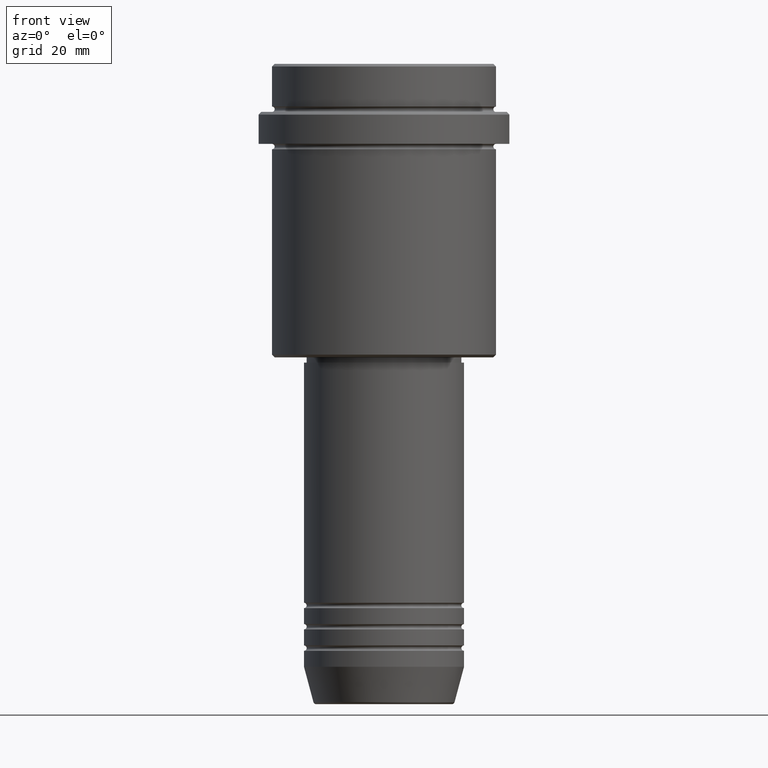
[diagram: clean part render]
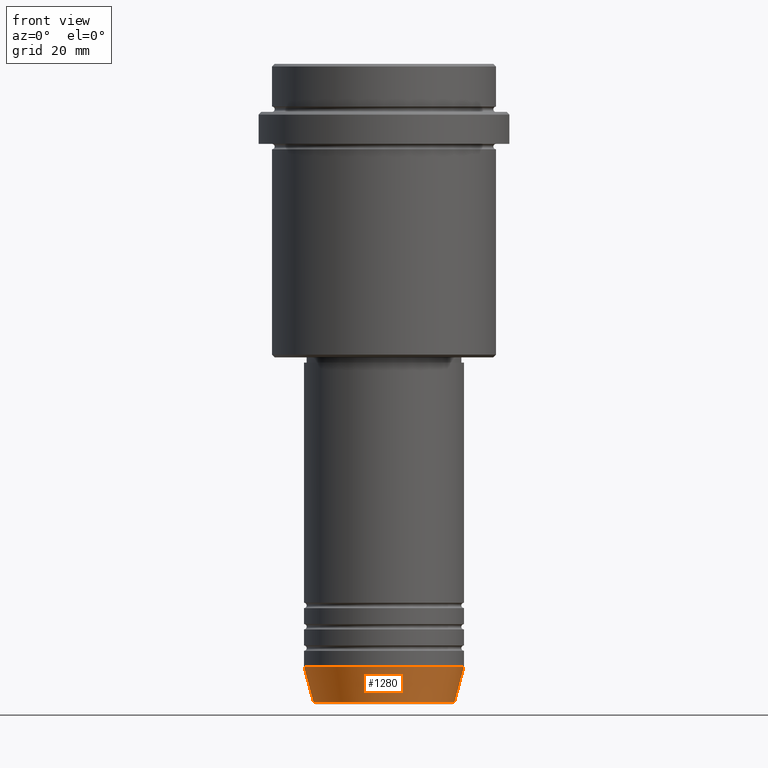
[diagram: same view with one face highlighted and labeled with its STEP entity id]
A machine part, front view. The second image highlights one B-rep face of the part: STEP entity #1280.
In plain terms, the highlighted conical surface has half-angle 15 deg.
Its self-contained STEP definition (entity closure, byte-faithful):
#19 = DIRECTION ( 'NONE',  ( -0.000000000000000000, -0.000000000000000000, 1.000000000000000000 ) ) ;
#30 = DIRECTION ( 'NONE',  ( -0.000000000000000000, -0.000000000000000000, 1.000000000000000000 ) ) ;
#109 = EDGE_CURVE ( 'NONE', #964, #555, #692, .T. ) ;
#119 = CONICAL_SURFACE ( 'NONE', #1355, 15.00000000000000000, 0.2617993877991500740 ) ;
#157 = LINE ( 'NONE', #378, #1288 ) ;
#174 = DIRECTION ( 'NONE',  ( -0.000000000000000000, -0.000000000000000000, 1.000000000000000000 ) ) ;
#181 = CIRCLE ( 'NONE', #955, 13.22365507213719305 ) ;
#261 = CARTESIAN_POINT ( 'NONE',  ( -15.00000000000000000, 1.836970198721029589E-15, -113.0000000000000000 ) ) ;
#328 = FACE_OUTER_BOUND ( 'NONE', #807, .T. ) ;
#335 = EDGE_CURVE ( 'NONE', #964, #729, #181, .T. ) ;
#377 = DIRECTION ( 'NONE',  ( 1.000000000000000000, 0.000000000000000000, 0.000000000000000000 ) ) ;
#378 = CARTESIAN_POINT ( 'NONE',  ( 15.00000000000000000, 0.000000000000000000, -113.0000000000000000 ) ) ;
#389 = CARTESIAN_POINT ( 'NONE',  ( 15.00000000000000000, 0.000000000000000000, -113.0000000000000000 ) ) ;
#403 = CARTESIAN_POINT ( 'NONE',  ( 0.000000000000000000, 0.000000000000000000, -119.6294095225512422 ) ) ;
#551 = CARTESIAN_POINT ( 'NONE',  ( -13.22365507213719305, 1.728200442216588780E-15, -119.6294095225512422 ) ) ;
#555 = VERTEX_POINT ( 'NONE', #261 ) ;
#569 = CARTESIAN_POINT ( 'NONE',  ( -15.00000000000000000, 1.836970198721029589E-15, -113.0000000000000000 ) ) ;
#575 = ORIENTED_EDGE ( 'NONE', *, *, #109, .F. ) ;
#582 = DIRECTION ( 'NONE',  ( 0.2588190451025213501, 0.000000000000000000, 0.9659258262890680902 ) ) ;
#671 = EDGE_CURVE ( 'NONE', #729, #1061, #157, .T. ) ;
#692 = LINE ( 'NONE', #569, #1398 ) ;
#707 = ORIENTED_EDGE ( 'NONE', *, *, #1036, .F. ) ;
#729 = VERTEX_POINT ( 'NONE', #1306 ) ;
#807 = EDGE_LOOP ( 'NONE', ( #575, #1106, #1321, #707 ) ) ;
#955 = AXIS2_PLACEMENT_3D ( 'NONE', #403, #174, #1049 ) ;
#960 = CIRCLE ( 'NONE', #1174, 15.00000000000000000 ) ;
#964 = VERTEX_POINT ( 'NONE', #551 ) ;
#1036 = EDGE_CURVE ( 'NONE', #555, #1061, #960, .T. ) ;
#1049 = DIRECTION ( 'NONE',  ( 1.000000000000000000, 0.000000000000000000, 0.000000000000000000 ) ) ;
#1061 = VERTEX_POINT ( 'NONE', #389 ) ;
#1102 = CARTESIAN_POINT ( 'NONE',  ( 0.000000000000000000, 0.000000000000000000, -113.0000000000000000 ) ) ;
#1106 = ORIENTED_EDGE ( 'NONE', *, *, #335, .T. ) ;
#1110 = DIRECTION ( 'NONE',  ( -0.2588190451025213501, 3.169619151431772337E-17, 0.9659258262890680902 ) ) ;
#1114 = DIRECTION ( 'NONE',  ( 1.000000000000000000, 0.000000000000000000, 0.000000000000000000 ) ) ;
#1141 = CARTESIAN_POINT ( 'NONE',  ( 0.000000000000000000, 0.000000000000000000, -113.0000000000000000 ) ) ;
#1174 = AXIS2_PLACEMENT_3D ( 'NONE', #1141, #30, #377 ) ;
#1280 = ADVANCED_FACE ( 'NONE', ( #328 ), #119, .T. ) ;
#1288 = VECTOR ( 'NONE', #582, 1000.000000000000000 ) ;
#1306 = CARTESIAN_POINT ( 'NONE',  ( 13.22365507213719305, 0.000000000000000000, -119.6294095225512422 ) ) ;
#1321 = ORIENTED_EDGE ( 'NONE', *, *, #671, .T. ) ;
#1355 = AXIS2_PLACEMENT_3D ( 'NONE', #1102, #19, #1114 ) ;
#1398 = VECTOR ( 'NONE', #1110, 1000.000000000000000 ) ;